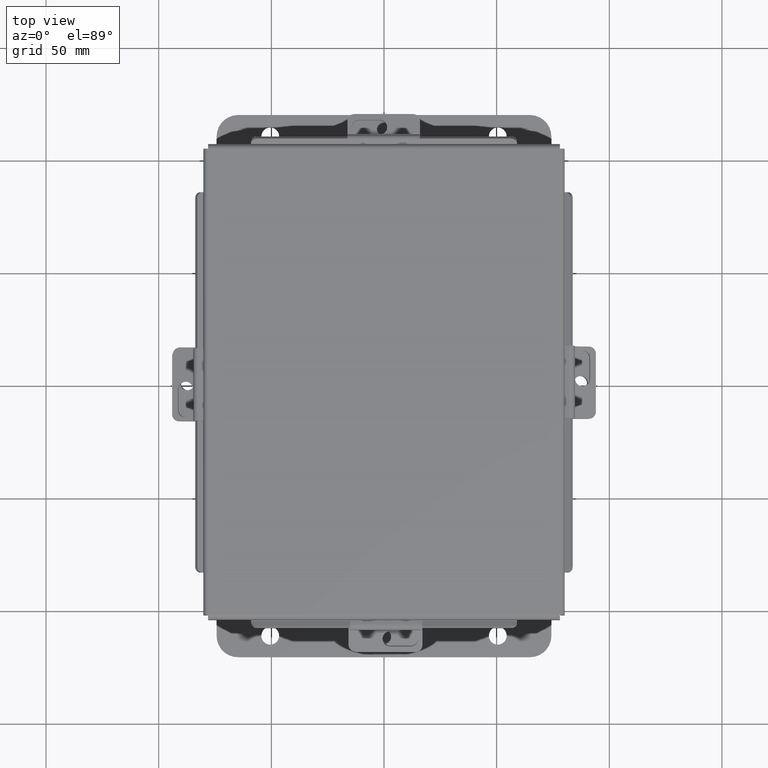
[diagram: clean part render]
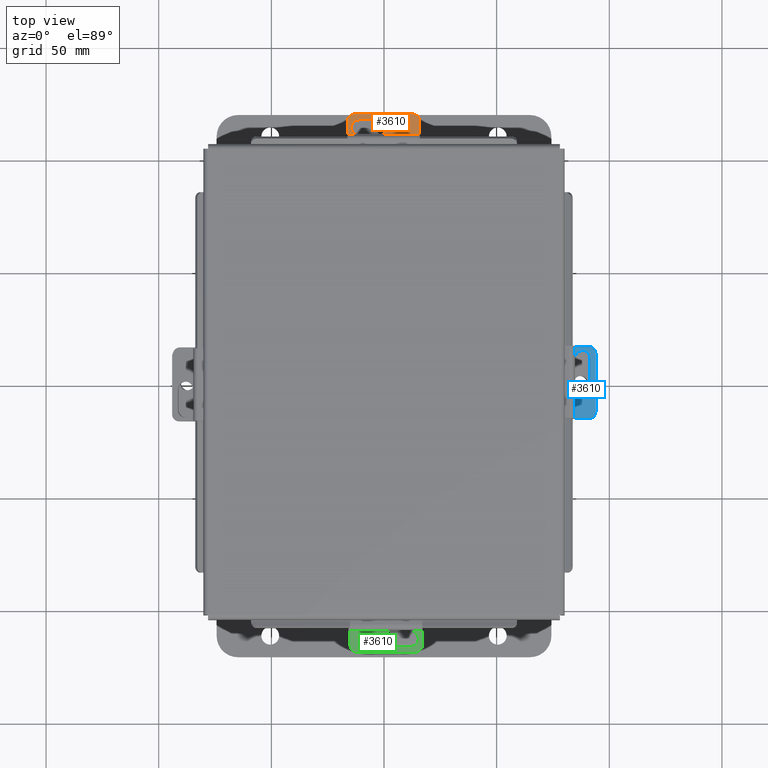
[diagram: same view with three faces highlighted in distinct colors, each labeled with its STEP entity id]
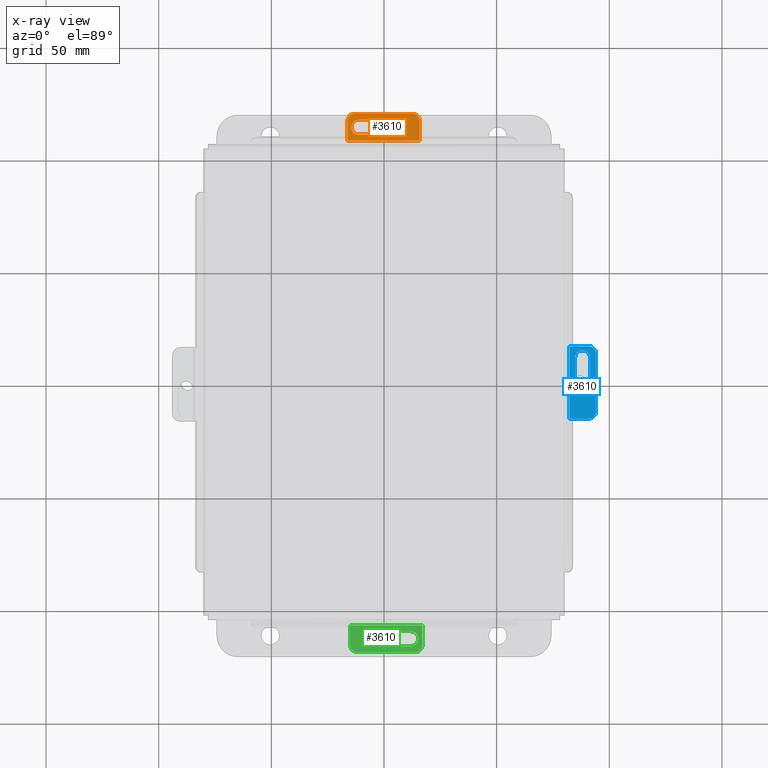
[diagram: x-ray of the same camera — body ghosted, the three highlighted faces saturated]
A machine part, top view with three faces highlighted in distinct colors.
The next image is the same camera in x-ray (body ghosted, the three faces saturated) — at least one of them is partly hidden behind the body in this view.
Their STEP definitions:

[orange] entity #3610 — the highlighted planar face has unit normal (0, 0.1564, 0.9877).
#33 = ORIENTED_EDGE ( 'NONE', *, *, #6299, .T. ) ;
#55 = LINE ( 'NONE', #1547, #1807 ) ;
#392 = DIRECTION ( 'NONE',  ( 1.000000000000000000, 0.0000000000000000000, 0.0000000000000000000 ) ) ;
#424 = AXIS2_PLACEMENT_3D ( 'NONE', #1804, #6989, #2537 ) ;
#550 = CARTESIAN_POINT ( 'NONE',  ( -0.5075000000000000600, -0.3435000000000015300, 0.4810000000000002600 ) ) ;
#840 = DIRECTION ( 'NONE',  ( 0.0000000000000000000, 1.000000000000000000, 3.549698536466037200E-015 ) ) ;
#898 = CARTESIAN_POINT ( 'NONE',  ( -0.6325000000000000600, -0.3435000000000011400, 0.3560000000000002600 ) ) ;
#967 = LINE ( 'NONE', #9062, #8872 ) ;
#1026 = EDGE_CURVE ( 'NONE', #3934, #2874, #5983, .T. ) ;
#1141 = VERTEX_POINT ( 'NONE', #4132 ) ;
#1203 = VECTOR ( 'NONE', #4684, 39.37007874015748100 ) ;
#1389 = ORIENTED_EDGE ( 'NONE', *, *, #7514, .F. ) ;
#1517 = EDGE_LOOP ( 'NONE', ( #1389, #2930, #7454, #7751 ) ) ;
#1547 = CARTESIAN_POINT ( 'NONE',  ( 0.06892698034544837700, -0.3435000000000002500, 0.1125000000000000400 ) ) ;
#1573 = DIRECTION ( 'NONE',  ( -1.000000000000000000, -0.0000000000000000000, -4.742791655667123600E-017 ) ) ;
#1578 = AXIS2_PLACEMENT_3D ( 'NONE', #7628, #3192, #8398 ) ;
#1638 = CARTESIAN_POINT ( 'NONE',  ( 0.6325000000000000600, -0.3434999999999999200, 0.008999999999999957700 ) ) ;
#1735 = CIRCLE ( 'NONE', #424, 0.1325000000000000300 ) ;
#1804 = CARTESIAN_POINT ( 'NONE',  ( 0.4289269803454484100, -0.3435000000000006900, 0.2450000000000000500 ) ) ;
#1807 = VECTOR ( 'NONE', #1573, 39.37007874015748100 ) ;
#1814 = CARTESIAN_POINT ( 'NONE',  ( -0.6325000000000000600, -0.3435000000000015300, 0.4810000000000002600 ) ) ;
#1834 = CARTESIAN_POINT ( 'NONE',  ( 0.06892698034544837700, -0.3435000000000002500, 0.1125000000000000400 ) ) ;
#1850 = EDGE_LOOP ( 'NONE', ( #8125, #7000, #6436, #33, #2562, #4532 ) ) ;
#2033 = VERTEX_POINT ( 'NONE', #1834 ) ;
#2087 = VECTOR ( 'NONE', #392, 39.37007874015748100 ) ;
#2339 = AXIS2_PLACEMENT_3D ( 'NONE', #5257, #840, #6005 ) ;
#2528 = VECTOR ( 'NONE', #6955, 39.37007874015748100 ) ;
#2537 = DIRECTION ( 'NONE',  ( 0.0000000000000000000, -3.608101123707516300E-015, 1.000000000000000000 ) ) ;
#2562 = ORIENTED_EDGE ( 'NONE', *, *, #5182, .F. ) ;
#2586 = DIRECTION ( 'NONE',  ( 0.0000000000000000000, -3.278217592397115100E-015, 1.000000000000000000 ) ) ;
#2601 = VERTEX_POINT ( 'NONE', #3086 ) ;
#2605 = DIRECTION ( 'NONE',  ( -0.0000000000000000000, 1.000000000000000000, 3.549698536466037200E-015 ) ) ;
#2619 = CARTESIAN_POINT ( 'NONE',  ( -0.5075000000000000600, -0.3435000000000011400, 0.3560000000000002600 ) ) ;
#2874 = VERTEX_POINT ( 'NONE', #550 ) ;
#2930 = ORIENTED_EDGE ( 'NONE', *, *, #4166, .F. ) ;
#2933 = VERTEX_POINT ( 'NONE', #4802 ) ;
#3086 = CARTESIAN_POINT ( 'NONE',  ( 0.06892698034544840500, -0.3435000000000011900, 0.3775000000000000600 ) ) ;
#3192 = DIRECTION ( 'NONE',  ( -0.0000000000000000000, 1.000000000000000000, 3.549698536466037200E-015 ) ) ;
#3404 = LINE ( 'NONE', #3965, #1203 ) ;
#3610 = ADVANCED_FACE ( 'NONE', ( #7252, #9466 ), #6558, .T. ) ;
#3916 = CARTESIAN_POINT ( 'NONE',  ( 0.4289269803454484100, -0.3435000000000011900, 0.3775000000000000600 ) ) ;
#3934 = VERTEX_POINT ( 'NONE', #4162 ) ;
#3965 = CARTESIAN_POINT ( 'NONE',  ( -0.6325000000000000600, -0.3434999999999998100, 0.008999999999999959400 ) ) ;
#4132 = CARTESIAN_POINT ( 'NONE',  ( -0.6325000000000000600, -0.3434999999999999200, 0.008999999999999957700 ) ) ;
#4162 = CARTESIAN_POINT ( 'NONE',  ( 0.5075000000000001700, -0.3435000000000015300, 0.4810000000000002600 ) ) ;
#4166 = EDGE_CURVE ( 'NONE', #4660, #2033, #55, .T. ) ;
#4532 = ORIENTED_EDGE ( 'NONE', *, *, #7012, .F. ) ;
#4660 = VERTEX_POINT ( 'NONE', #8447 ) ;
#4684 = DIRECTION ( 'NONE',  ( 1.000000000000000000, 0.0000000000000000000, 0.0000000000000000000 ) ) ;
#4802 = CARTESIAN_POINT ( 'NONE',  ( 0.6325000000000000600, -0.3435000000000011400, 0.3560000000000002600 ) ) ;
#5006 = VERTEX_POINT ( 'NONE', #898 ) ;
#5068 = EDGE_CURVE ( 'NONE', #5006, #1141, #967, .T. ) ;
#5182 = EDGE_CURVE ( 'NONE', #5986, #2933, #6171, .T. ) ;
#5257 = CARTESIAN_POINT ( 'NONE',  ( 0.06892698034544837700, -0.3435000000000006900, 0.2450000000000000500 ) ) ;
#5394 = AXIS2_PLACEMENT_3D ( 'NONE', #6523, #6490, #6464 ) ;
#5578 = CIRCLE ( 'NONE', #2339, 0.1325000000000000300 ) ;
#5774 = LINE ( 'NONE', #7058, #2087 ) ;
#5856 = EDGE_CURVE ( 'NONE', #5006, #2874, #9207, .T. ) ;
#5938 = VECTOR ( 'NONE', #8406, 39.37007874015748100 ) ;
#5983 = LINE ( 'NONE', #1814, #2528 ) ;
#5986 = VERTEX_POINT ( 'NONE', #1638 ) ;
#6005 = DIRECTION ( 'NONE',  ( 0.0000000000000000000, -3.608101123707516300E-015, 1.000000000000000000 ) ) ;
#6171 = LINE ( 'NONE', #8397, #5938 ) ;
#6299 = EDGE_CURVE ( 'NONE', #3934, #2933, #8042, .T. ) ;
#6417 = AXIS2_PLACEMENT_3D ( 'NONE', #2619, #2605, #2586 ) ;
#6436 = ORIENTED_EDGE ( 'NONE', *, *, #1026, .F. ) ;
#6464 = DIRECTION ( 'NONE',  ( 0.0000000000000000000, -3.549698536466037200E-015, 1.000000000000000000 ) ) ;
#6490 = DIRECTION ( 'NONE',  ( -0.0000000000000000000, 1.000000000000000000, 3.549698536466037200E-015 ) ) ;
#6523 = CARTESIAN_POINT ( 'NONE',  ( -0.6325000000000000600, -0.3435000000000015300, 0.4810000000000002600 ) ) ;
#6558 = PLANE ( 'NONE',  #5394 ) ;
#6955 = DIRECTION ( 'NONE',  ( -1.000000000000000000, -0.0000000000000000000, -0.0000000000000000000 ) ) ;
#6989 = DIRECTION ( 'NONE',  ( 0.0000000000000000000, 1.000000000000000000, 3.549698536466037200E-015 ) ) ;
#7000 = ORIENTED_EDGE ( 'NONE', *, *, #5856, .T. ) ;
#7012 = EDGE_CURVE ( 'NONE', #1141, #5986, #3404, .T. ) ;
#7058 = CARTESIAN_POINT ( 'NONE',  ( 0.06892698034544837700, -0.3435000000000011900, 0.3775000000000000600 ) ) ;
#7252 = FACE_BOUND ( 'NONE', #1517, .T. ) ;
#7454 = ORIENTED_EDGE ( 'NONE', *, *, #8966, .F. ) ;
#7514 = EDGE_CURVE ( 'NONE', #2033, #2601, #5578, .T. ) ;
#7628 = CARTESIAN_POINT ( 'NONE',  ( 0.5075000000000001700, -0.3435000000000011400, 0.3560000000000002600 ) ) ;
#7676 = VERTEX_POINT ( 'NONE', #3916 ) ;
#7751 = ORIENTED_EDGE ( 'NONE', *, *, #9245, .F. ) ;
#8042 = CIRCLE ( 'NONE', #1578, 0.1250000000000000300 ) ;
#8125 = ORIENTED_EDGE ( 'NONE', *, *, #5068, .F. ) ;
#8397 = CARTESIAN_POINT ( 'NONE',  ( 0.6325000000000000600, -0.3435000000000015300, 0.4810000000000002600 ) ) ;
#8398 = DIRECTION ( 'NONE',  ( 0.0000000000000000000, -3.278217592397115100E-015, 1.000000000000000000 ) ) ;
#8406 = DIRECTION ( 'NONE',  ( -0.0000000000000000000, -3.549698536466037200E-015, 1.000000000000000000 ) ) ;
#8447 = CARTESIAN_POINT ( 'NONE',  ( 0.4289269803454484100, -0.3435000000000002500, 0.1125000000000000600 ) ) ;
#8872 = VECTOR ( 'NONE', #9049, 39.37007874015748100 ) ;
#8966 = EDGE_CURVE ( 'NONE', #7676, #4660, #1735, .T. ) ;
#9049 = DIRECTION ( 'NONE',  ( -0.0000000000000000000, 3.549698536466037200E-015, -1.000000000000000000 ) ) ;
#9062 = CARTESIAN_POINT ( 'NONE',  ( -0.6325000000000000600, -0.3434999999999998100, 4.308072624094997700E-018 ) ) ;
#9207 = CIRCLE ( 'NONE', #6417, 0.1250000000000000300 ) ;
#9245 = EDGE_CURVE ( 'NONE', #2601, #7676, #5774, .T. ) ;
#9466 = FACE_OUTER_BOUND ( 'NONE', #1850, .T. ) ;

[blue] entity #3610 — the highlighted planar face has unit normal (0.1564, -0, 0.9877).
#33 = ORIENTED_EDGE ( 'NONE', *, *, #6299, .T. ) ;
#55 = LINE ( 'NONE', #1547, #1807 ) ;
#392 = DIRECTION ( 'NONE',  ( 1.000000000000000000, 0.0000000000000000000, 0.0000000000000000000 ) ) ;
#424 = AXIS2_PLACEMENT_3D ( 'NONE', #1804, #6989, #2537 ) ;
#550 = CARTESIAN_POINT ( 'NONE',  ( -0.5075000000000000600, -0.3435000000000015300, 0.4810000000000002600 ) ) ;
#840 = DIRECTION ( 'NONE',  ( 0.0000000000000000000, 1.000000000000000000, 3.549698536466037200E-015 ) ) ;
#898 = CARTESIAN_POINT ( 'NONE',  ( -0.6325000000000000600, -0.3435000000000011400, 0.3560000000000002600 ) ) ;
#967 = LINE ( 'NONE', #9062, #8872 ) ;
#1026 = EDGE_CURVE ( 'NONE', #3934, #2874, #5983, .T. ) ;
#1141 = VERTEX_POINT ( 'NONE', #4132 ) ;
#1203 = VECTOR ( 'NONE', #4684, 39.37007874015748100 ) ;
#1389 = ORIENTED_EDGE ( 'NONE', *, *, #7514, .F. ) ;
#1517 = EDGE_LOOP ( 'NONE', ( #1389, #2930, #7454, #7751 ) ) ;
#1547 = CARTESIAN_POINT ( 'NONE',  ( 0.06892698034544837700, -0.3435000000000002500, 0.1125000000000000400 ) ) ;
#1573 = DIRECTION ( 'NONE',  ( -1.000000000000000000, -0.0000000000000000000, -4.742791655667123600E-017 ) ) ;
#1578 = AXIS2_PLACEMENT_3D ( 'NONE', #7628, #3192, #8398 ) ;
#1638 = CARTESIAN_POINT ( 'NONE',  ( 0.6325000000000000600, -0.3434999999999999200, 0.008999999999999957700 ) ) ;
#1735 = CIRCLE ( 'NONE', #424, 0.1325000000000000300 ) ;
#1804 = CARTESIAN_POINT ( 'NONE',  ( 0.4289269803454484100, -0.3435000000000006900, 0.2450000000000000500 ) ) ;
#1807 = VECTOR ( 'NONE', #1573, 39.37007874015748100 ) ;
#1814 = CARTESIAN_POINT ( 'NONE',  ( -0.6325000000000000600, -0.3435000000000015300, 0.4810000000000002600 ) ) ;
#1834 = CARTESIAN_POINT ( 'NONE',  ( 0.06892698034544837700, -0.3435000000000002500, 0.1125000000000000400 ) ) ;
#1850 = EDGE_LOOP ( 'NONE', ( #8125, #7000, #6436, #33, #2562, #4532 ) ) ;
#2033 = VERTEX_POINT ( 'NONE', #1834 ) ;
#2087 = VECTOR ( 'NONE', #392, 39.37007874015748100 ) ;
#2339 = AXIS2_PLACEMENT_3D ( 'NONE', #5257, #840, #6005 ) ;
#2528 = VECTOR ( 'NONE', #6955, 39.37007874015748100 ) ;
#2537 = DIRECTION ( 'NONE',  ( 0.0000000000000000000, -3.608101123707516300E-015, 1.000000000000000000 ) ) ;
#2562 = ORIENTED_EDGE ( 'NONE', *, *, #5182, .F. ) ;
#2586 = DIRECTION ( 'NONE',  ( 0.0000000000000000000, -3.278217592397115100E-015, 1.000000000000000000 ) ) ;
#2601 = VERTEX_POINT ( 'NONE', #3086 ) ;
#2605 = DIRECTION ( 'NONE',  ( -0.0000000000000000000, 1.000000000000000000, 3.549698536466037200E-015 ) ) ;
#2619 = CARTESIAN_POINT ( 'NONE',  ( -0.5075000000000000600, -0.3435000000000011400, 0.3560000000000002600 ) ) ;
#2874 = VERTEX_POINT ( 'NONE', #550 ) ;
#2930 = ORIENTED_EDGE ( 'NONE', *, *, #4166, .F. ) ;
#2933 = VERTEX_POINT ( 'NONE', #4802 ) ;
#3086 = CARTESIAN_POINT ( 'NONE',  ( 0.06892698034544840500, -0.3435000000000011900, 0.3775000000000000600 ) ) ;
#3192 = DIRECTION ( 'NONE',  ( -0.0000000000000000000, 1.000000000000000000, 3.549698536466037200E-015 ) ) ;
#3404 = LINE ( 'NONE', #3965, #1203 ) ;
#3610 = ADVANCED_FACE ( 'NONE', ( #7252, #9466 ), #6558, .T. ) ;
#3916 = CARTESIAN_POINT ( 'NONE',  ( 0.4289269803454484100, -0.3435000000000011900, 0.3775000000000000600 ) ) ;
#3934 = VERTEX_POINT ( 'NONE', #4162 ) ;
#3965 = CARTESIAN_POINT ( 'NONE',  ( -0.6325000000000000600, -0.3434999999999998100, 0.008999999999999959400 ) ) ;
#4132 = CARTESIAN_POINT ( 'NONE',  ( -0.6325000000000000600, -0.3434999999999999200, 0.008999999999999957700 ) ) ;
#4162 = CARTESIAN_POINT ( 'NONE',  ( 0.5075000000000001700, -0.3435000000000015300, 0.4810000000000002600 ) ) ;
#4166 = EDGE_CURVE ( 'NONE', #4660, #2033, #55, .T. ) ;
#4532 = ORIENTED_EDGE ( 'NONE', *, *, #7012, .F. ) ;
#4660 = VERTEX_POINT ( 'NONE', #8447 ) ;
#4684 = DIRECTION ( 'NONE',  ( 1.000000000000000000, 0.0000000000000000000, 0.0000000000000000000 ) ) ;
#4802 = CARTESIAN_POINT ( 'NONE',  ( 0.6325000000000000600, -0.3435000000000011400, 0.3560000000000002600 ) ) ;
#5006 = VERTEX_POINT ( 'NONE', #898 ) ;
#5068 = EDGE_CURVE ( 'NONE', #5006, #1141, #967, .T. ) ;
#5182 = EDGE_CURVE ( 'NONE', #5986, #2933, #6171, .T. ) ;
#5257 = CARTESIAN_POINT ( 'NONE',  ( 0.06892698034544837700, -0.3435000000000006900, 0.2450000000000000500 ) ) ;
#5394 = AXIS2_PLACEMENT_3D ( 'NONE', #6523, #6490, #6464 ) ;
#5578 = CIRCLE ( 'NONE', #2339, 0.1325000000000000300 ) ;
#5774 = LINE ( 'NONE', #7058, #2087 ) ;
#5856 = EDGE_CURVE ( 'NONE', #5006, #2874, #9207, .T. ) ;
#5938 = VECTOR ( 'NONE', #8406, 39.37007874015748100 ) ;
#5983 = LINE ( 'NONE', #1814, #2528 ) ;
#5986 = VERTEX_POINT ( 'NONE', #1638 ) ;
#6005 = DIRECTION ( 'NONE',  ( 0.0000000000000000000, -3.608101123707516300E-015, 1.000000000000000000 ) ) ;
#6171 = LINE ( 'NONE', #8397, #5938 ) ;
#6299 = EDGE_CURVE ( 'NONE', #3934, #2933, #8042, .T. ) ;
#6417 = AXIS2_PLACEMENT_3D ( 'NONE', #2619, #2605, #2586 ) ;
#6436 = ORIENTED_EDGE ( 'NONE', *, *, #1026, .F. ) ;
#6464 = DIRECTION ( 'NONE',  ( 0.0000000000000000000, -3.549698536466037200E-015, 1.000000000000000000 ) ) ;
#6490 = DIRECTION ( 'NONE',  ( -0.0000000000000000000, 1.000000000000000000, 3.549698536466037200E-015 ) ) ;
#6523 = CARTESIAN_POINT ( 'NONE',  ( -0.6325000000000000600, -0.3435000000000015300, 0.4810000000000002600 ) ) ;
#6558 = PLANE ( 'NONE',  #5394 ) ;
#6955 = DIRECTION ( 'NONE',  ( -1.000000000000000000, -0.0000000000000000000, -0.0000000000000000000 ) ) ;
#6989 = DIRECTION ( 'NONE',  ( 0.0000000000000000000, 1.000000000000000000, 3.549698536466037200E-015 ) ) ;
#7000 = ORIENTED_EDGE ( 'NONE', *, *, #5856, .T. ) ;
#7012 = EDGE_CURVE ( 'NONE', #1141, #5986, #3404, .T. ) ;
#7058 = CARTESIAN_POINT ( 'NONE',  ( 0.06892698034544837700, -0.3435000000000011900, 0.3775000000000000600 ) ) ;
#7252 = FACE_BOUND ( 'NONE', #1517, .T. ) ;
#7454 = ORIENTED_EDGE ( 'NONE', *, *, #8966, .F. ) ;
#7514 = EDGE_CURVE ( 'NONE', #2033, #2601, #5578, .T. ) ;
#7628 = CARTESIAN_POINT ( 'NONE',  ( 0.5075000000000001700, -0.3435000000000011400, 0.3560000000000002600 ) ) ;
#7676 = VERTEX_POINT ( 'NONE', #3916 ) ;
#7751 = ORIENTED_EDGE ( 'NONE', *, *, #9245, .F. ) ;
#8042 = CIRCLE ( 'NONE', #1578, 0.1250000000000000300 ) ;
#8125 = ORIENTED_EDGE ( 'NONE', *, *, #5068, .F. ) ;
#8397 = CARTESIAN_POINT ( 'NONE',  ( 0.6325000000000000600, -0.3435000000000015300, 0.4810000000000002600 ) ) ;
#8398 = DIRECTION ( 'NONE',  ( 0.0000000000000000000, -3.278217592397115100E-015, 1.000000000000000000 ) ) ;
#8406 = DIRECTION ( 'NONE',  ( -0.0000000000000000000, -3.549698536466037200E-015, 1.000000000000000000 ) ) ;
#8447 = CARTESIAN_POINT ( 'NONE',  ( 0.4289269803454484100, -0.3435000000000002500, 0.1125000000000000600 ) ) ;
#8872 = VECTOR ( 'NONE', #9049, 39.37007874015748100 ) ;
#8966 = EDGE_CURVE ( 'NONE', #7676, #4660, #1735, .T. ) ;
#9049 = DIRECTION ( 'NONE',  ( -0.0000000000000000000, 3.549698536466037200E-015, -1.000000000000000000 ) ) ;
#9062 = CARTESIAN_POINT ( 'NONE',  ( -0.6325000000000000600, -0.3434999999999998100, 4.308072624094997700E-018 ) ) ;
#9207 = CIRCLE ( 'NONE', #6417, 0.1250000000000000300 ) ;
#9245 = EDGE_CURVE ( 'NONE', #2601, #7676, #5774, .T. ) ;
#9466 = FACE_OUTER_BOUND ( 'NONE', #1850, .T. ) ;

[green] entity #3610 — the highlighted planar face has unit normal (0, -0.1564, 0.9877).
#33 = ORIENTED_EDGE ( 'NONE', *, *, #6299, .T. ) ;
#55 = LINE ( 'NONE', #1547, #1807 ) ;
#392 = DIRECTION ( 'NONE',  ( 1.000000000000000000, 0.0000000000000000000, 0.0000000000000000000 ) ) ;
#424 = AXIS2_PLACEMENT_3D ( 'NONE', #1804, #6989, #2537 ) ;
#550 = CARTESIAN_POINT ( 'NONE',  ( -0.5075000000000000600, -0.3435000000000015300, 0.4810000000000002600 ) ) ;
#840 = DIRECTION ( 'NONE',  ( 0.0000000000000000000, 1.000000000000000000, 3.549698536466037200E-015 ) ) ;
#898 = CARTESIAN_POINT ( 'NONE',  ( -0.6325000000000000600, -0.3435000000000011400, 0.3560000000000002600 ) ) ;
#967 = LINE ( 'NONE', #9062, #8872 ) ;
#1026 = EDGE_CURVE ( 'NONE', #3934, #2874, #5983, .T. ) ;
#1141 = VERTEX_POINT ( 'NONE', #4132 ) ;
#1203 = VECTOR ( 'NONE', #4684, 39.37007874015748100 ) ;
#1389 = ORIENTED_EDGE ( 'NONE', *, *, #7514, .F. ) ;
#1517 = EDGE_LOOP ( 'NONE', ( #1389, #2930, #7454, #7751 ) ) ;
#1547 = CARTESIAN_POINT ( 'NONE',  ( 0.06892698034544837700, -0.3435000000000002500, 0.1125000000000000400 ) ) ;
#1573 = DIRECTION ( 'NONE',  ( -1.000000000000000000, -0.0000000000000000000, -4.742791655667123600E-017 ) ) ;
#1578 = AXIS2_PLACEMENT_3D ( 'NONE', #7628, #3192, #8398 ) ;
#1638 = CARTESIAN_POINT ( 'NONE',  ( 0.6325000000000000600, -0.3434999999999999200, 0.008999999999999957700 ) ) ;
#1735 = CIRCLE ( 'NONE', #424, 0.1325000000000000300 ) ;
#1804 = CARTESIAN_POINT ( 'NONE',  ( 0.4289269803454484100, -0.3435000000000006900, 0.2450000000000000500 ) ) ;
#1807 = VECTOR ( 'NONE', #1573, 39.37007874015748100 ) ;
#1814 = CARTESIAN_POINT ( 'NONE',  ( -0.6325000000000000600, -0.3435000000000015300, 0.4810000000000002600 ) ) ;
#1834 = CARTESIAN_POINT ( 'NONE',  ( 0.06892698034544837700, -0.3435000000000002500, 0.1125000000000000400 ) ) ;
#1850 = EDGE_LOOP ( 'NONE', ( #8125, #7000, #6436, #33, #2562, #4532 ) ) ;
#2033 = VERTEX_POINT ( 'NONE', #1834 ) ;
#2087 = VECTOR ( 'NONE', #392, 39.37007874015748100 ) ;
#2339 = AXIS2_PLACEMENT_3D ( 'NONE', #5257, #840, #6005 ) ;
#2528 = VECTOR ( 'NONE', #6955, 39.37007874015748100 ) ;
#2537 = DIRECTION ( 'NONE',  ( 0.0000000000000000000, -3.608101123707516300E-015, 1.000000000000000000 ) ) ;
#2562 = ORIENTED_EDGE ( 'NONE', *, *, #5182, .F. ) ;
#2586 = DIRECTION ( 'NONE',  ( 0.0000000000000000000, -3.278217592397115100E-015, 1.000000000000000000 ) ) ;
#2601 = VERTEX_POINT ( 'NONE', #3086 ) ;
#2605 = DIRECTION ( 'NONE',  ( -0.0000000000000000000, 1.000000000000000000, 3.549698536466037200E-015 ) ) ;
#2619 = CARTESIAN_POINT ( 'NONE',  ( -0.5075000000000000600, -0.3435000000000011400, 0.3560000000000002600 ) ) ;
#2874 = VERTEX_POINT ( 'NONE', #550 ) ;
#2930 = ORIENTED_EDGE ( 'NONE', *, *, #4166, .F. ) ;
#2933 = VERTEX_POINT ( 'NONE', #4802 ) ;
#3086 = CARTESIAN_POINT ( 'NONE',  ( 0.06892698034544840500, -0.3435000000000011900, 0.3775000000000000600 ) ) ;
#3192 = DIRECTION ( 'NONE',  ( -0.0000000000000000000, 1.000000000000000000, 3.549698536466037200E-015 ) ) ;
#3404 = LINE ( 'NONE', #3965, #1203 ) ;
#3610 = ADVANCED_FACE ( 'NONE', ( #7252, #9466 ), #6558, .T. ) ;
#3916 = CARTESIAN_POINT ( 'NONE',  ( 0.4289269803454484100, -0.3435000000000011900, 0.3775000000000000600 ) ) ;
#3934 = VERTEX_POINT ( 'NONE', #4162 ) ;
#3965 = CARTESIAN_POINT ( 'NONE',  ( -0.6325000000000000600, -0.3434999999999998100, 0.008999999999999959400 ) ) ;
#4132 = CARTESIAN_POINT ( 'NONE',  ( -0.6325000000000000600, -0.3434999999999999200, 0.008999999999999957700 ) ) ;
#4162 = CARTESIAN_POINT ( 'NONE',  ( 0.5075000000000001700, -0.3435000000000015300, 0.4810000000000002600 ) ) ;
#4166 = EDGE_CURVE ( 'NONE', #4660, #2033, #55, .T. ) ;
#4532 = ORIENTED_EDGE ( 'NONE', *, *, #7012, .F. ) ;
#4660 = VERTEX_POINT ( 'NONE', #8447 ) ;
#4684 = DIRECTION ( 'NONE',  ( 1.000000000000000000, 0.0000000000000000000, 0.0000000000000000000 ) ) ;
#4802 = CARTESIAN_POINT ( 'NONE',  ( 0.6325000000000000600, -0.3435000000000011400, 0.3560000000000002600 ) ) ;
#5006 = VERTEX_POINT ( 'NONE', #898 ) ;
#5068 = EDGE_CURVE ( 'NONE', #5006, #1141, #967, .T. ) ;
#5182 = EDGE_CURVE ( 'NONE', #5986, #2933, #6171, .T. ) ;
#5257 = CARTESIAN_POINT ( 'NONE',  ( 0.06892698034544837700, -0.3435000000000006900, 0.2450000000000000500 ) ) ;
#5394 = AXIS2_PLACEMENT_3D ( 'NONE', #6523, #6490, #6464 ) ;
#5578 = CIRCLE ( 'NONE', #2339, 0.1325000000000000300 ) ;
#5774 = LINE ( 'NONE', #7058, #2087 ) ;
#5856 = EDGE_CURVE ( 'NONE', #5006, #2874, #9207, .T. ) ;
#5938 = VECTOR ( 'NONE', #8406, 39.37007874015748100 ) ;
#5983 = LINE ( 'NONE', #1814, #2528 ) ;
#5986 = VERTEX_POINT ( 'NONE', #1638 ) ;
#6005 = DIRECTION ( 'NONE',  ( 0.0000000000000000000, -3.608101123707516300E-015, 1.000000000000000000 ) ) ;
#6171 = LINE ( 'NONE', #8397, #5938 ) ;
#6299 = EDGE_CURVE ( 'NONE', #3934, #2933, #8042, .T. ) ;
#6417 = AXIS2_PLACEMENT_3D ( 'NONE', #2619, #2605, #2586 ) ;
#6436 = ORIENTED_EDGE ( 'NONE', *, *, #1026, .F. ) ;
#6464 = DIRECTION ( 'NONE',  ( 0.0000000000000000000, -3.549698536466037200E-015, 1.000000000000000000 ) ) ;
#6490 = DIRECTION ( 'NONE',  ( -0.0000000000000000000, 1.000000000000000000, 3.549698536466037200E-015 ) ) ;
#6523 = CARTESIAN_POINT ( 'NONE',  ( -0.6325000000000000600, -0.3435000000000015300, 0.4810000000000002600 ) ) ;
#6558 = PLANE ( 'NONE',  #5394 ) ;
#6955 = DIRECTION ( 'NONE',  ( -1.000000000000000000, -0.0000000000000000000, -0.0000000000000000000 ) ) ;
#6989 = DIRECTION ( 'NONE',  ( 0.0000000000000000000, 1.000000000000000000, 3.549698536466037200E-015 ) ) ;
#7000 = ORIENTED_EDGE ( 'NONE', *, *, #5856, .T. ) ;
#7012 = EDGE_CURVE ( 'NONE', #1141, #5986, #3404, .T. ) ;
#7058 = CARTESIAN_POINT ( 'NONE',  ( 0.06892698034544837700, -0.3435000000000011900, 0.3775000000000000600 ) ) ;
#7252 = FACE_BOUND ( 'NONE', #1517, .T. ) ;
#7454 = ORIENTED_EDGE ( 'NONE', *, *, #8966, .F. ) ;
#7514 = EDGE_CURVE ( 'NONE', #2033, #2601, #5578, .T. ) ;
#7628 = CARTESIAN_POINT ( 'NONE',  ( 0.5075000000000001700, -0.3435000000000011400, 0.3560000000000002600 ) ) ;
#7676 = VERTEX_POINT ( 'NONE', #3916 ) ;
#7751 = ORIENTED_EDGE ( 'NONE', *, *, #9245, .F. ) ;
#8042 = CIRCLE ( 'NONE', #1578, 0.1250000000000000300 ) ;
#8125 = ORIENTED_EDGE ( 'NONE', *, *, #5068, .F. ) ;
#8397 = CARTESIAN_POINT ( 'NONE',  ( 0.6325000000000000600, -0.3435000000000015300, 0.4810000000000002600 ) ) ;
#8398 = DIRECTION ( 'NONE',  ( 0.0000000000000000000, -3.278217592397115100E-015, 1.000000000000000000 ) ) ;
#8406 = DIRECTION ( 'NONE',  ( -0.0000000000000000000, -3.549698536466037200E-015, 1.000000000000000000 ) ) ;
#8447 = CARTESIAN_POINT ( 'NONE',  ( 0.4289269803454484100, -0.3435000000000002500, 0.1125000000000000600 ) ) ;
#8872 = VECTOR ( 'NONE', #9049, 39.37007874015748100 ) ;
#8966 = EDGE_CURVE ( 'NONE', #7676, #4660, #1735, .T. ) ;
#9049 = DIRECTION ( 'NONE',  ( -0.0000000000000000000, 3.549698536466037200E-015, -1.000000000000000000 ) ) ;
#9062 = CARTESIAN_POINT ( 'NONE',  ( -0.6325000000000000600, -0.3434999999999998100, 4.308072624094997700E-018 ) ) ;
#9207 = CIRCLE ( 'NONE', #6417, 0.1250000000000000300 ) ;
#9245 = EDGE_CURVE ( 'NONE', #2601, #7676, #5774, .T. ) ;
#9466 = FACE_OUTER_BOUND ( 'NONE', #1850, .T. ) ;